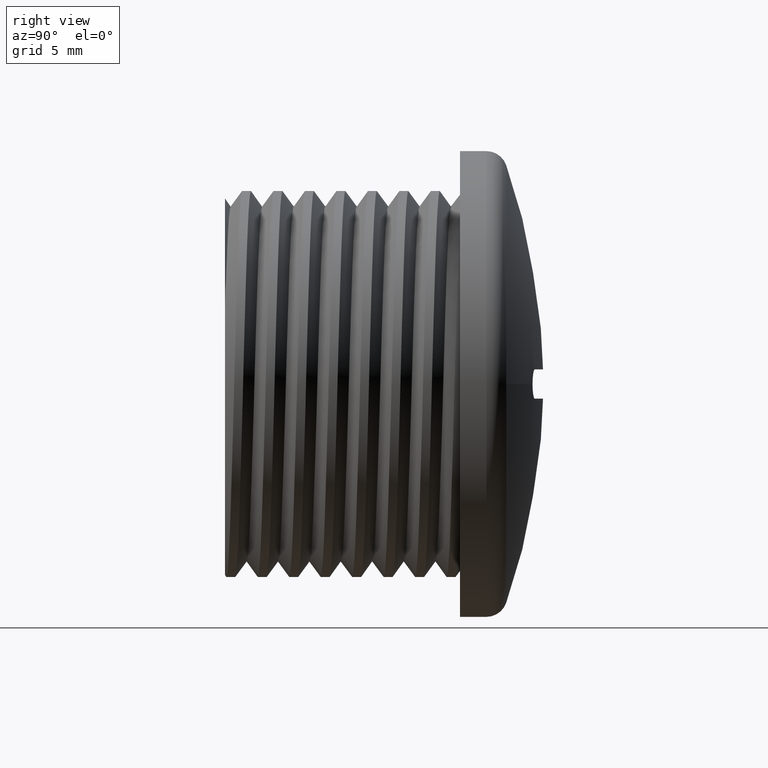
[diagram: clean part render]
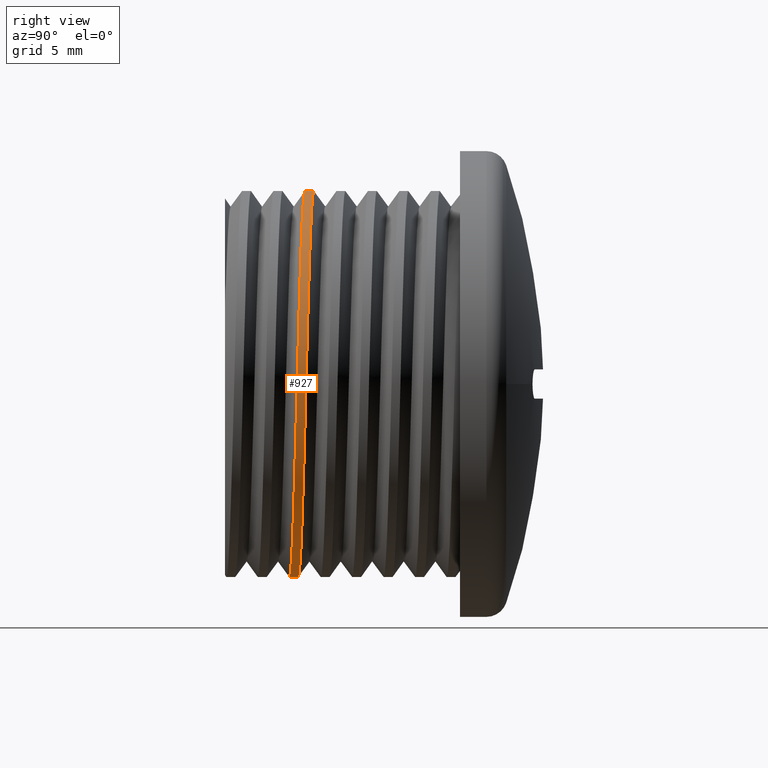
[diagram: same view with one face highlighted and labeled with its STEP entity id]
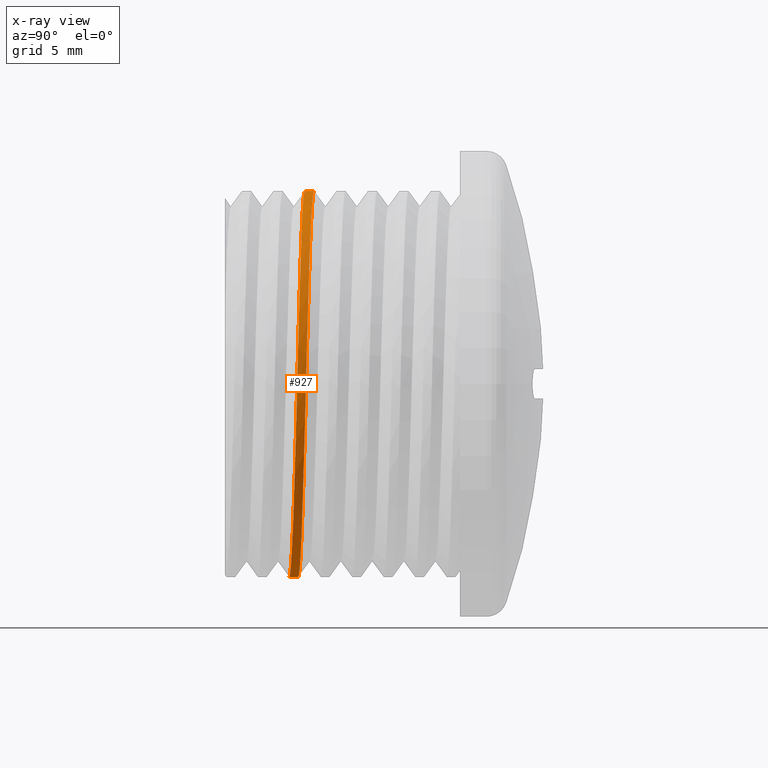
[diagram: x-ray of the same camera — body ghosted, the highlighted face saturated]
A machine part, right view. The second image highlights one B-rep face of the part: STEP entity #927.
The next image is the same camera in x-ray: the body ghosted, the highlighted face saturated — about 0% of this face is hidden behind the body in this view.
In plain terms, the highlighted cylindrical surface (partial cylindrical patch) has radius 9.2 mm, axis along (-0, -1, -0).
Its self-contained STEP definition (entity closure, byte-faithful):
#371 = CARTESIAN_POINT ( 'NONE',  ( 5.633375276077823100E-016, 3.444690285272763700, -9.199999999999995700 ) ) ;
#383 = CARTESIAN_POINT ( 'NONE',  ( 9.200000000000072100, 3.913440285272713000, 3.810764773832510300 ) ) ;
#384 = CARTESIAN_POINT ( 'NONE',  ( 6.505382386916286600, 3.632190285272712100, -6.505382386916285700 ) ) ;
#385 = CARTESIAN_POINT ( 'NONE',  ( 6.505382386916283900, 4.007190285272711700, 6.505382386916287500 ) ) ;
#387 = CARTESIAN_POINT ( 'NONE',  ( 3.810764773823920300, 3.677468227850392100, 9.200000000008559600 ) ) ;
#388 = CARTESIAN_POINT ( 'NONE',  ( 9.200000000000002800, 3.489968227850095900, 3.810764773832481000 ) ) ;
#389 = CARTESIAN_POINT ( 'NONE',  ( 6.505382386916237700, 3.208718227850094500, -6.505382386916236800 ) ) ;
#390 = CARTESIAN_POINT ( 'NONE',  ( 9.199999999999997500, 3.396218227850095400, 2.253350110431130000E-015 ) ) ;
#391 = CARTESIAN_POINT ( 'NONE',  ( -2.065864361683507600E-011, 3.771218227850602600, 9.199999999999995700 ) ) ;
#392 = CARTESIAN_POINT ( 'NONE',  ( 6.505382386916235000, 3.583718227850095000, 6.505382386916238600 ) ) ;
#393 = CARTESIAN_POINT ( 'NONE',  ( 9.200000000000066800, 3.819690285272712100, 2.253350110431146600E-015 ) ) ;
#394 = CARTESIAN_POINT ( 'NONE',  ( 9.200000000000004600, 3.302468227850094500, -3.810764773832473900 ) ) ;
#395 = CARTESIAN_POINT ( 'NONE',  ( 3.810764773832503700, 3.538440285272712600, -9.200000000000073900 ) ) ;
#396 = CARTESIAN_POINT ( 'NONE',  ( 3.810764773832462800, 3.114968227850094500, -9.200000000000018800 ) ) ;
#397 = CARTESIAN_POINT ( 'NONE',  ( 9.200000000000073900, 3.725940285272712600, -3.810764773832503200 ) ) ;
#398 = CARTESIAN_POINT ( 'NONE',  ( 3.810764773832505400, 4.100940285272712600, 9.200000000000072100 ) ) ;
#399 = CARTESIAN_POINT ( 'NONE',  ( -1.690012582823347100E-015, 4.194690285272763200, 9.199999999999995700 ) ) ;
#410 = CARTESIAN_POINT ( 'NONE',  ( 5.633375276077827100E-016, 3.021218227850095000, -9.200000000000002800 ) ) ;
#461 = ORIENTED_EDGE ( 'NONE', *, *, #867, .F. ) ;
#462 = ORIENTED_EDGE ( 'NONE', *, *, #845, .T. ) ;
#495 = ORIENTED_EDGE ( 'NONE', *, *, #871, .T. ) ;
#496 = ORIENTED_EDGE ( 'NONE', *, *, #844, .T. ) ;
#652 = CARTESIAN_POINT ( 'NONE',  ( -1.690012582823347100E-015, 4.194690285272763200, 9.199999999999995700 ) ) ;
#660 = EDGE_LOOP ( 'NONE', ( #496, #495, #462, #461 ) ) ;
#682 = VERTEX_POINT ( 'NONE', #652 ) ;
#691 = VERTEX_POINT ( 'NONE', #765 ) ;
#695 = VERTEX_POINT ( 'NONE', #755 ) ;
#712 = VERTEX_POINT ( 'NONE', #760 ) ;
#755 = CARTESIAN_POINT ( 'NONE',  ( 5.633375276077823100E-016, 3.444690285272763700, -9.199999999999995700 ) ) ;
#760 = CARTESIAN_POINT ( 'NONE',  ( -2.065864361683507600E-011, 3.771218227850602600, 9.199999999999995700 ) ) ;
#765 = CARTESIAN_POINT ( 'NONE',  ( 5.633375276077827100E-016, 3.021218227850095000, -9.200000000000002800 ) ) ;
#844 = EDGE_CURVE ( 'NONE', #695, #682, #2712, .T. ) ;
#845 = EDGE_CURVE ( 'NONE', #712, #691, #2707, .T. ) ;
#867 = EDGE_CURVE ( 'NONE', #695, #691, #2503, .T. ) ;
#871 = EDGE_CURVE ( 'NONE', #682, #712, #2533, .T. ) ;
#927 = ADVANCED_FACE ( 'NONE', ( #1710 ), #1758, .T. ) ;
#1710 = FACE_OUTER_BOUND ( 'NONE', #660, .T. ) ;
#1746 = DIRECTION ( 'NONE',  ( -0.0000000000000000000, -1.000000000000000000, -0.0000000000000000000 ) ) ;
#1747 = DIRECTION ( 'NONE',  ( 0.0000000000000000000, 0.0000000000000000000, -1.000000000000000000 ) ) ;
#1758 = CYLINDRICAL_SURFACE ( 'NONE', #2153, 9.199999999999999300 ) ;
#1760 = CARTESIAN_POINT ( 'NONE',  ( 0.0000000000000000000, 39.89106148374602900, 0.0000000000000000000 ) ) ;
#2091 = VECTOR ( 'NONE', #2504, 1000.000000000000000 ) ;
#2097 = VECTOR ( 'NONE', #2538, 1000.000000000000000 ) ;
#2153 = AXIS2_PLACEMENT_3D ( 'NONE', #1760, #1746, #1747 ) ;
#2488 = CARTESIAN_POINT ( 'NONE',  ( 0.0000000000000000000, 39.89106148374602900, -9.199999999999999300 ) ) ;
#2503 = LINE ( 'NONE', #2488, #2091 ) ;
#2504 = DIRECTION ( 'NONE',  ( -0.0000000000000000000, -1.000000000000000000, -0.0000000000000000000 ) ) ;
#2533 = LINE ( 'NONE', #2535, #2097 ) ;
#2535 = CARTESIAN_POINT ( 'NONE',  ( 1.126675055215564800E-015, 39.89106148374602900, 9.199999999999999300 ) ) ;
#2538 = DIRECTION ( 'NONE',  ( -0.0000000000000000000, -1.000000000000000000, -0.0000000000000000000 ) ) ;
#2707 =( BOUNDED_CURVE ( )  B_SPLINE_CURVE ( 2, ( #391, #387, #392, #388, #390, #394, #389, #396, #410 ),
 .UNSPECIFIED., .F., .T. ) 
 B_SPLINE_CURVE_WITH_KNOTS ( ( 3, 2, 2, 2, 3 ),
 ( 0.2856738155237571500, 0.2929257092811528600, 0.3001776030385486200, 0.3074294967959443300, 0.3146813905533400500 ),
 .UNSPECIFIED. ) 
 CURVE ( )  GEOMETRIC_REPRESENTATION_ITEM ( )  RATIONAL_B_SPLINE_CURVE ( ( 1.000000000000223400, 0.9238795325110634700, 1.000000000000000000, 0.9238795325112867400, 1.000000000000000000, 0.9238795325112867400, 1.000000000000000000, 0.9238795325112864100, 1.000000000000000200 ) ) 
 REPRESENTATION_ITEM ( '' )  );
#2712 =( BOUNDED_CURVE ( )  B_SPLINE_CURVE ( 2, ( #371, #395, #384, #397, #393, #383, #385, #398, #399 ),
 .UNSPECIFIED., .F., .T. ) 
 B_SPLINE_CURVE_WITH_KNOTS ( ( 3, 2, 2, 2, 3 ),
 ( 0.1348144834136371400, 0.1420649811266055900, 0.1493154788395740200, 0.1565659765525425100, 0.1638164742655109600 ),
 .UNSPECIFIED. ) 
 CURVE ( )  GEOMETRIC_REPRESENTATION_ITEM ( )  RATIONAL_B_SPLINE_CURVE ( ( 1.000000000000000000, 0.9238795325112867400, 1.000000000000000000, 0.9238795325112867400, 1.000000000000000000, 0.9238795325112867400, 1.000000000000000000, 0.9238795325112867400, 1.000000000000000000 ) ) 
 REPRESENTATION_ITEM ( '' )  );